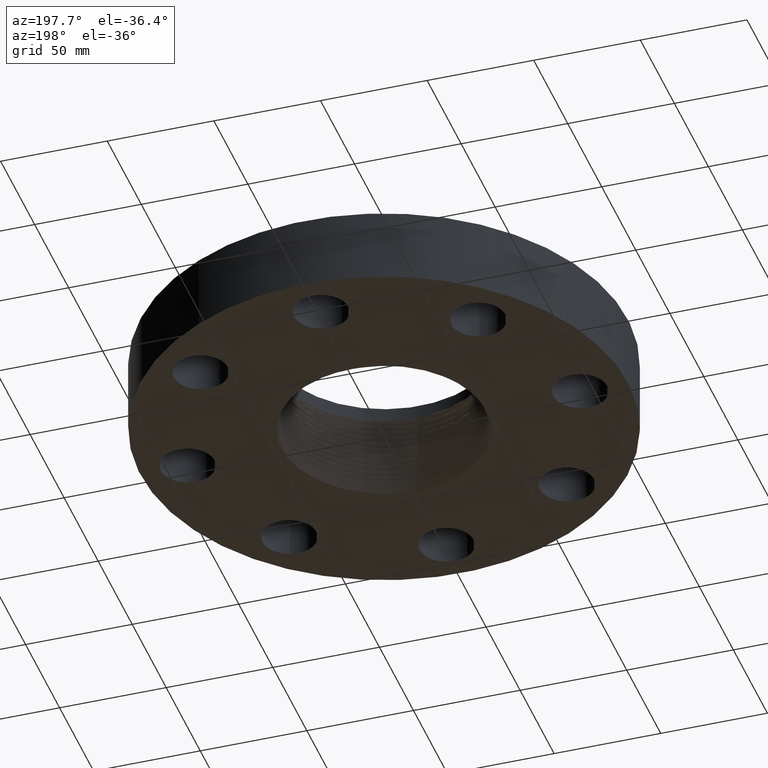
[diagram: clean part render]
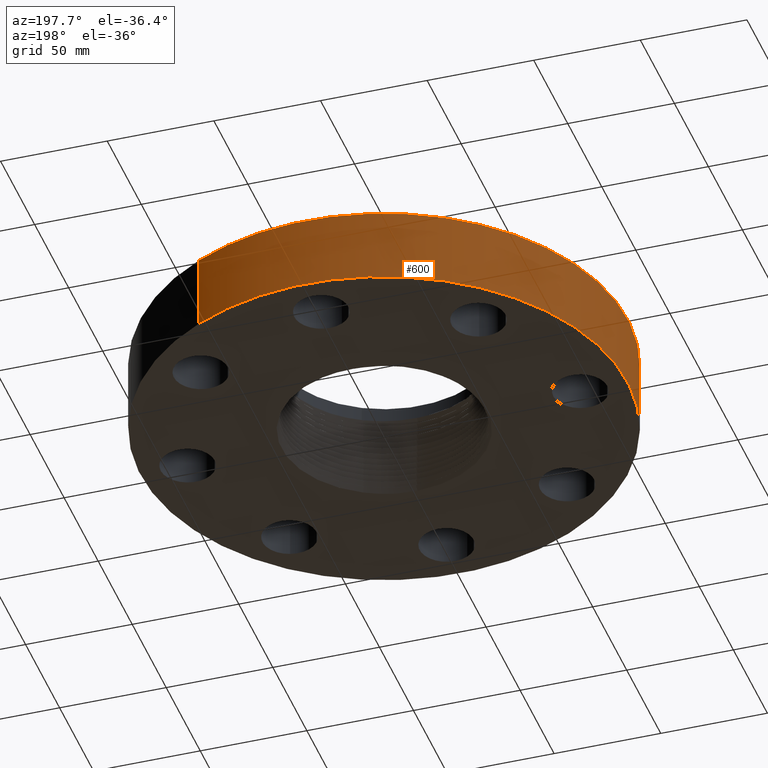
[diagram: same view with one face highlighted and labeled with its STEP entity id]
A machine part, auxiliary view. The second image highlights one B-rep face of the part: STEP entity #600.
In plain terms, the highlighted cylindrical surface (partial cylindrical patch) has radius 114.3 mm, axis along (0, 0, -1).
Its self-contained STEP definition (entity closure, byte-faithful):
#199=AXIS2_PLACEMENT_3D('Circle Axis2P3D',#197,#198,$) ;
#561=AXIS2_PLACEMENT_3D('Cylinder Axis2P3D',#558,#559,#560) ;
#591=AXIS2_PLACEMENT_3D('Circle Axis2P3D',#589,#590,$) ;
#192=CARTESIAN_POINT('Vertex',(2.15741492373,3.94912152852,2.79741234551E-016)) ;
#194=CARTESIAN_POINT('Vertex',(-2.15741492373,-3.94912152852,2.79741234551E-016)) ;
#197=CARTESIAN_POINT('Axis2P3D Location',(0.,0.,0.)) ;
#558=CARTESIAN_POINT('Axis2P3D Location',(0.,0.,0.970000000004)) ;
#563=CARTESIAN_POINT('Line Origine',(2.15741492373,3.94912152852,0.690000000003)) ;
#567=CARTESIAN_POINT('Vertex',(2.15741492373,3.94912152852,1.38000000001)) ;
#574=CARTESIAN_POINT('Vertex',(-2.15741492373,-3.94912152852,1.38000000001)) ;
#577=CARTESIAN_POINT('Line Origine',(-2.15741492373,-3.94912152852,0.690000000003)) ;
#589=CARTESIAN_POINT('Axis2P3D Location',(0.,0.,1.38000000001)) ;
#198=DIRECTION('Axis2P3D Direction',(0.,0.,-0.0393700787402)) ;
#559=DIRECTION('Axis2P3D Direction',(0.,0.,-0.0393700787402)) ;
#560=DIRECTION('Axis2P3D XDirection',(-0.0188750212049,-0.0345504945626,0.)) ;
#564=DIRECTION('Vector Direction',(0.,0.,-0.0393700787402)) ;
#578=DIRECTION('Vector Direction',(0.,0.,-0.0393700787402)) ;
#590=DIRECTION('Axis2P3D Direction',(0.,0.,-0.0393700787402)) ;
#565=VECTOR('Line Direction',#564,0.0393700787402) ;
#579=VECTOR('Line Direction',#578,0.0393700787402) ;
#595=ORIENTED_EDGE('',*,*,#201,.F.) ;
#596=ORIENTED_EDGE('',*,*,#581,.T.) ;
#597=ORIENTED_EDGE('',*,*,#593,.T.) ;
#598=ORIENTED_EDGE('',*,*,#569,.F.) ;
#600=ADVANCED_FACE('PartBody',(#599),#562,.T.) ;
#200=CIRCLE('generated circle',#199,4.50000000002) ;
#592=CIRCLE('generated circle',#591,4.50000000002) ;
#562=CYLINDRICAL_SURFACE('generated cylinder',#561,4.50000000002) ;
#201=EDGE_CURVE('',#195,#193,#200,.T.) ;
#569=EDGE_CURVE('',#193,#568,#566,.F.) ;
#581=EDGE_CURVE('',#195,#575,#580,.F.) ;
#593=EDGE_CURVE('',#575,#568,#592,.T.) ;
#594=EDGE_LOOP('',(#595,#596,#597,#598)) ;
#599=FACE_OUTER_BOUND('',#594,.T.) ;
#566=LINE('Line',#563,#565) ;
#580=LINE('Line',#577,#579) ;
#193=VERTEX_POINT('',#192) ;
#195=VERTEX_POINT('',#194) ;
#568=VERTEX_POINT('',#567) ;
#575=VERTEX_POINT('',#574) ;